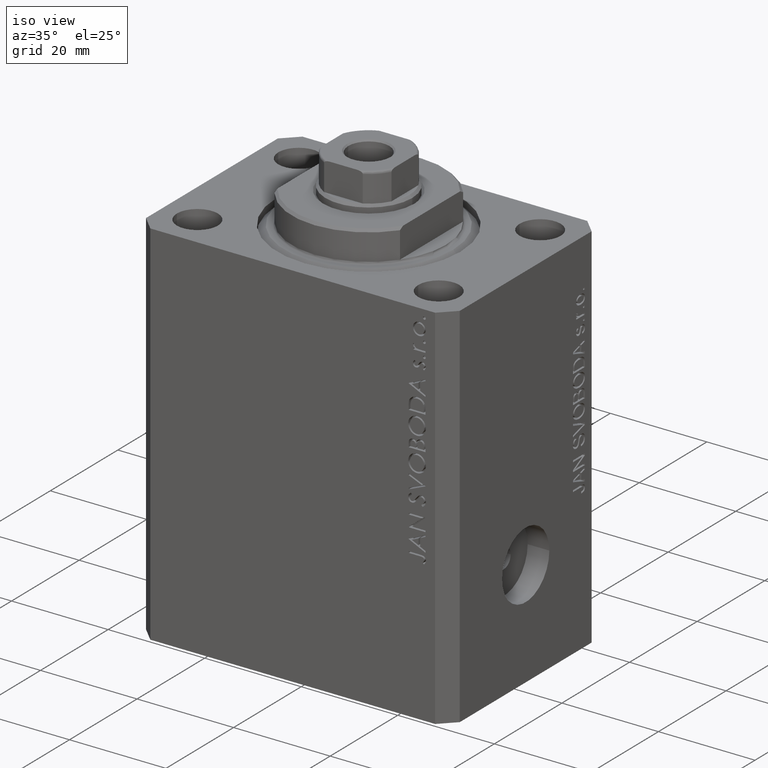
[diagram: clean part render]
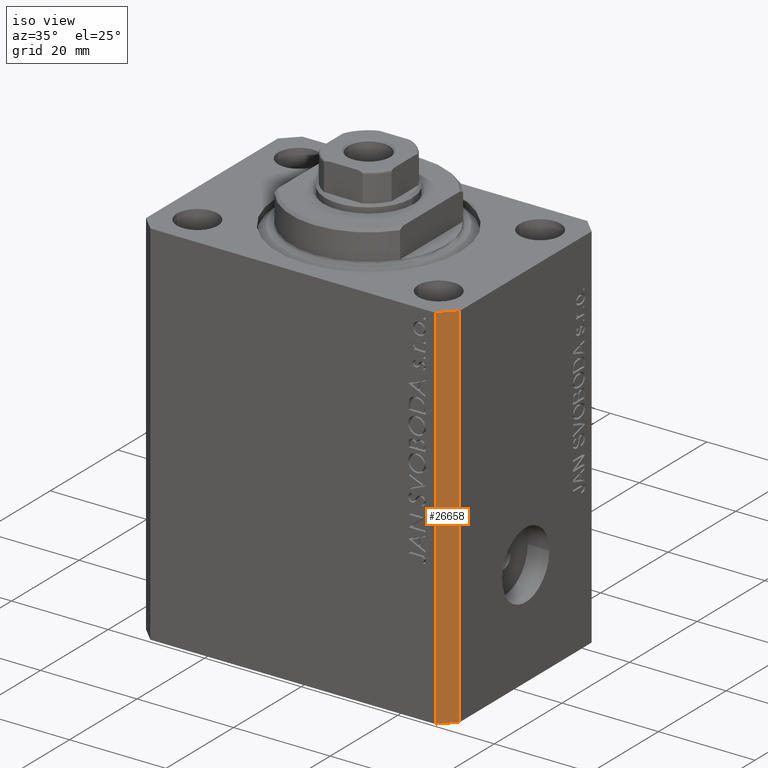
[diagram: same view with one face highlighted and labeled with its STEP entity id]
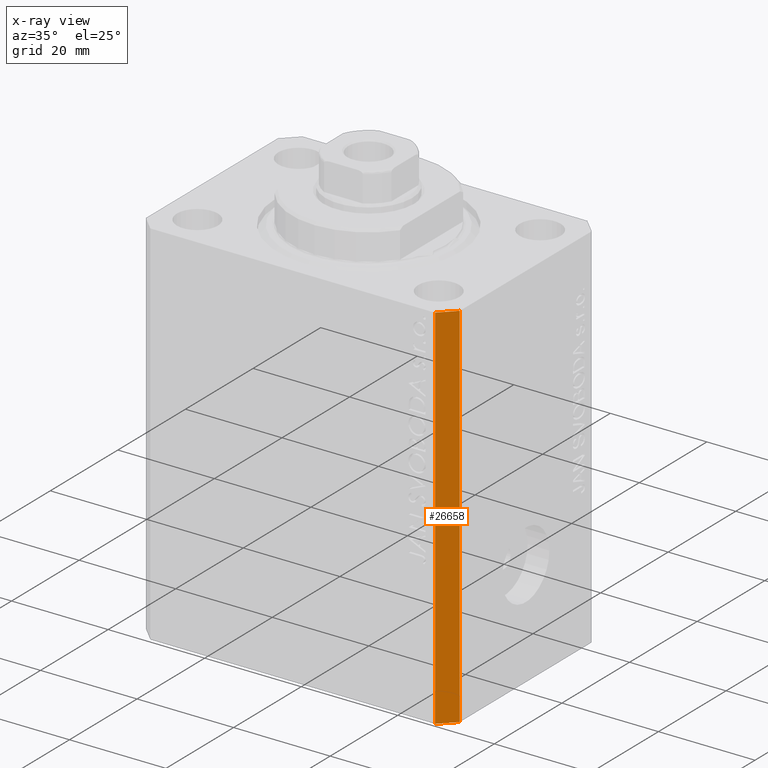
[diagram: x-ray of the same camera — body ghosted, the highlighted face saturated]
A machine part, iso view. The second image highlights one B-rep face of the part: STEP entity #26658.
The next image is the same camera in x-ray: the body ghosted, the highlighted face saturated — about 0% of this face is hidden behind the body in this view.
In plain terms, the highlighted planar face has unit normal (0.7071, -0.7071, 0).
Its self-contained STEP definition (entity closure, byte-faithful):
#897 = DIRECTION ( 'NONE',  ( 0.7071067811865483499, 0.7071067811865466846, 0.000000000000000000 ) ) ;
#2191 = VECTOR ( 'NONE', #897, 1000.000000000000000 ) ;
#2757 = DIRECTION ( 'NONE',  ( 0.000000000000000000, 0.000000000000000000, 1.000000000000000000 ) ) ;
#3703 = VERTEX_POINT ( 'NONE', #26893 ) ;
#6142 = VERTEX_POINT ( 'NONE', #39674 ) ;
#6464 = VERTEX_POINT ( 'NONE', #43446 ) ;
#6976 = DIRECTION ( 'NONE',  ( 0.7071067811865466846, -0.7071067811865483499, 0.000000000000000000 ) ) ;
#7537 = ORIENTED_EDGE ( 'NONE', *, *, #28470, .T. ) ;
#7707 = LINE ( 'NONE', #8177, #27557 ) ;
#8177 = CARTESIAN_POINT ( 'NONE',  ( 29.49999999999650413, -22.49999999999949196, -77.00000000000000000 ) ) ;
#10027 = EDGE_CURVE ( 'NONE', #3703, #6464, #32504, .T. ) ;
#10347 = DIRECTION ( 'NONE',  ( 0.7071067811865483499, 0.7071067811865466846, 0.000000000000000000 ) ) ;
#11034 = FACE_OUTER_BOUND ( 'NONE', #39449, .T. ) ;
#14064 = VECTOR ( 'NONE', #2757, 1000.000000000000000 ) ;
#14624 = PLANE ( 'NONE',  #17879 ) ;
#15771 = LINE ( 'NONE', #45285, #2191 ) ;
#17879 = AXIS2_PLACEMENT_3D ( 'NONE', #28592, #6976, #10347 ) ;
#20871 = EDGE_CURVE ( 'NONE', #6464, #28028, #15771, .T. ) ;
#21734 = CARTESIAN_POINT ( 'NONE',  ( 32.49999999999651124, -19.49999999999949196, -77.00000000000000000 ) ) ;
#24577 = ORIENTED_EDGE ( 'NONE', *, *, #10027, .F. ) ;
#25097 = LINE ( 'NONE', #21734, #34694 ) ;
#25759 = ORIENTED_EDGE ( 'NONE', *, *, #44123, .T. ) ;
#26658 = ADVANCED_FACE ( 'NONE', ( #11034 ), #14624, .T. ) ;
#26893 = CARTESIAN_POINT ( 'NONE',  ( 29.49999999999650413, -22.49999999999949196, -77.00000000000000000 ) ) ;
#27557 = VECTOR ( 'NONE', #33400, 1000.000000000000000 ) ;
#28028 = VERTEX_POINT ( 'NONE', #41003 ) ;
#28470 = EDGE_CURVE ( 'NONE', #6142, #28028, #25097, .T. ) ;
#28592 = CARTESIAN_POINT ( 'NONE',  ( 29.49999999999650413, -22.49999999999949196, -77.00000000000000000 ) ) ;
#32504 = LINE ( 'NONE', #32736, #14064 ) ;
#32736 = CARTESIAN_POINT ( 'NONE',  ( 29.49999999999650413, -22.49999999999949196, -77.00000000000000000 ) ) ;
#33400 = DIRECTION ( 'NONE',  ( 0.7071067811865483499, 0.7071067811865466846, 0.000000000000000000 ) ) ;
#34694 = VECTOR ( 'NONE', #43099, 1000.000000000000000 ) ;
#39449 = EDGE_LOOP ( 'NONE', ( #46034, #24577, #25759, #7537 ) ) ;
#39674 = CARTESIAN_POINT ( 'NONE',  ( 32.49999999999651124, -19.49999999999949196, -77.00000000000000000 ) ) ;
#41003 = CARTESIAN_POINT ( 'NONE',  ( 32.49999999999651124, -19.49999999999949196, 0.000000000000000000 ) ) ;
#43099 = DIRECTION ( 'NONE',  ( 0.000000000000000000, 0.000000000000000000, 1.000000000000000000 ) ) ;
#43446 = CARTESIAN_POINT ( 'NONE',  ( 29.49999999999650413, -22.49999999999949196, 0.000000000000000000 ) ) ;
#44123 = EDGE_CURVE ( 'NONE', #3703, #6142, #7707, .T. ) ;
#45285 = CARTESIAN_POINT ( 'NONE',  ( 29.49999999999650413, -22.49999999999949196, 0.000000000000000000 ) ) ;
#46034 = ORIENTED_EDGE ( 'NONE', *, *, #20871, .F. ) ;